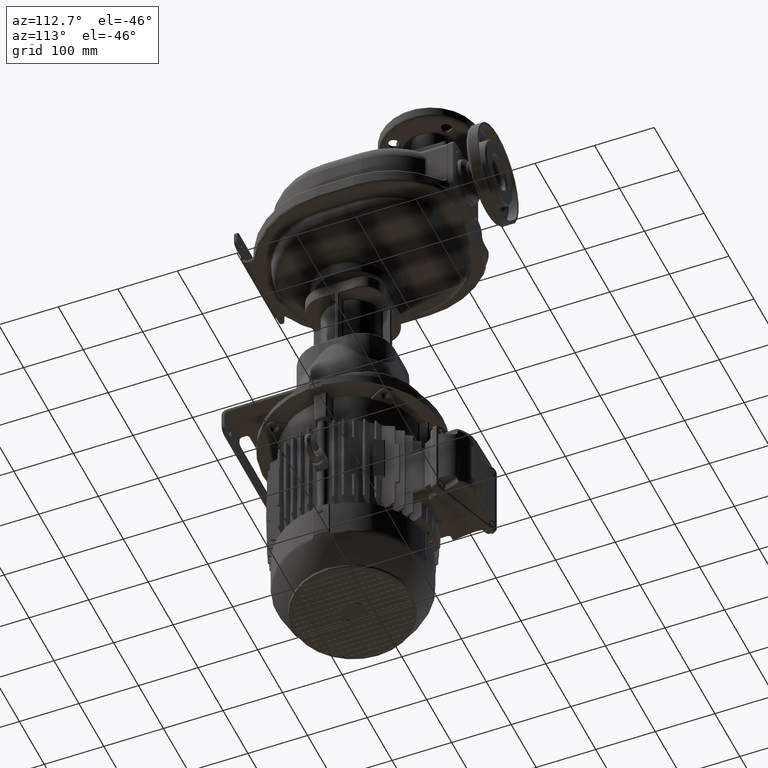
[diagram: clean part render]
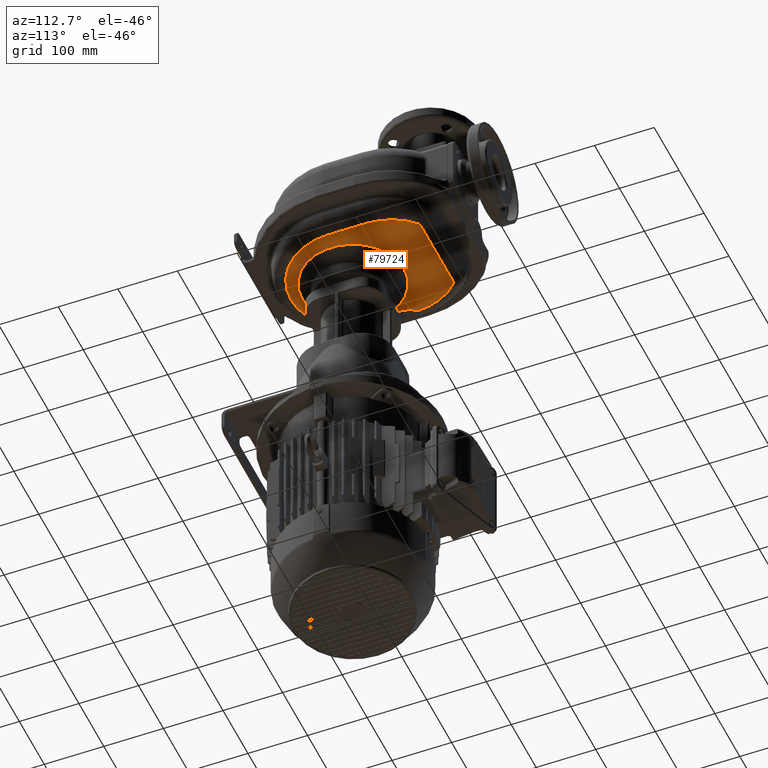
[diagram: same view with one face highlighted and labeled with its STEP entity id]
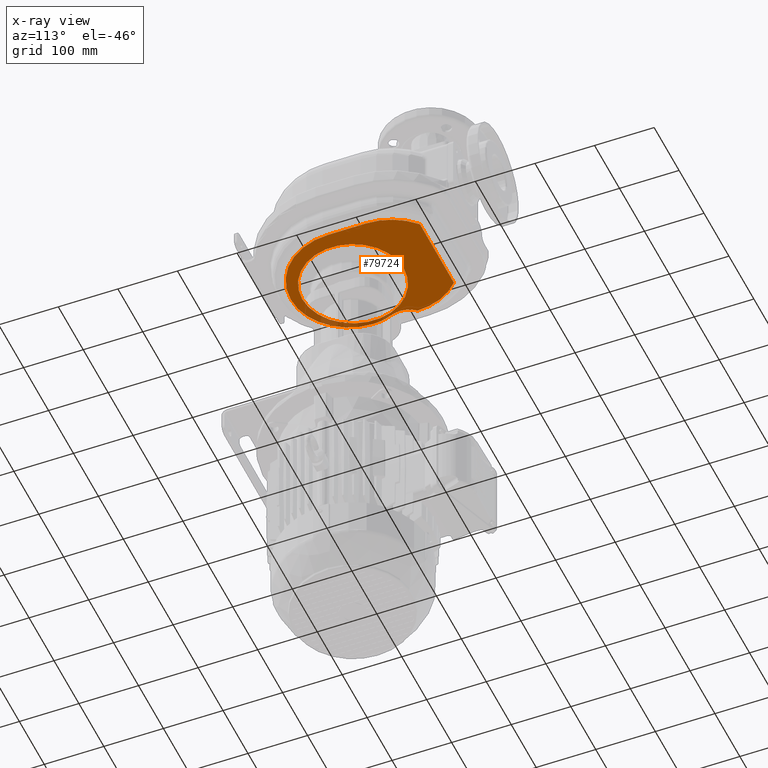
[diagram: x-ray of the same camera — body ghosted, the highlighted face saturated]
A machine part, auxiliary view. The second image highlights one B-rep face of the part: STEP entity #79724.
The next image is the same camera in x-ray: the body ghosted, the highlighted face saturated — about 7% of this face is hidden behind the body in this view.
In plain terms, the highlighted planar face has unit normal (0, 0, -1).
Its self-contained STEP definition (entity closure, byte-faithful):
#22984=CARTESIAN_POINT('',(1.E1,2.29E2,-7.45E1));
#22985=DIRECTION('',(0.E0,0.E0,-1.E0));
#22986=DIRECTION('',(-9.999446808968E-1,1.051832430719E-2,0.E0));
#22987=AXIS2_PLACEMENT_3D('',#22984,#22985,#22986);
#22989=CARTESIAN_POINT('',(-1.222196018903E2,2.038729468385E2,-7.45E1));
#22990=DIRECTION('',(0.E0,0.E0,1.E0));
#22991=DIRECTION('',(9.229889912622E-1,-3.848263530592E-1,0.E0));
#22992=AXIS2_PLACEMENT_3D('',#22989,#22990,#22991);
#22994=CARTESIAN_POINT('',(-5.E0,1.55E2,-7.45E1));
#22995=DIRECTION('',(0.E0,0.E0,-1.E0));
#22996=DIRECTION('',(-1.E0,0.E0,0.E0));
#22997=AXIS2_PLACEMENT_3D('',#22994,#22995,#22996);
#22999=CARTESIAN_POINT('',(5.E0,1.55E2,-7.45E1));
#23000=DIRECTION('',(0.E0,0.E0,-1.E0));
#23001=DIRECTION('',(0.E0,-1.E0,0.E0));
#23002=AXIS2_PLACEMENT_3D('',#22999,#23000,#23001);
#23004=CARTESIAN_POINT('',(5.E0,1.65E2,-7.45E1));
#23005=DIRECTION('',(0.E0,0.E0,-1.E0));
#23006=DIRECTION('',(1.E0,0.E0,0.E0));
#23007=AXIS2_PLACEMENT_3D('',#23004,#23005,#23006);
#23009=DIRECTION('',(0.E0,-1.E0,0.E0));
#23010=VECTOR('',#23009,6.4E1);
#23011=CARTESIAN_POINT('',(1.12E2,2.29E2,-7.45E1));
#23012=LINE('',#23011,#23010);
#23013=CARTESIAN_POINT('',(1.E1,2.29E2,-7.45E1));
#23014=DIRECTION('',(0.E0,0.E0,-1.E0));
#23015=DIRECTION('',(6.754849897899E-1,7.373737373737E-1,0.E0));
#23016=AXIS2_PLACEMENT_3D('',#23013,#23014,#23015);
#23018=CARTESIAN_POINT('',(7.687301398920E1,3.02E2,-7.45E1));
#23019=DIRECTION('',(0.E0,0.E0,-1.E0));
#23020=DIRECTION('',(0.E0,1.E0,0.E0));
#23021=AXIS2_PLACEMENT_3D('',#23018,#23019,#23020);
#23023=DIRECTION('',(1.E0,0.E0,0.E0));
#23024=VECTOR('',#23023,1.337460279784E2);
#23025=CARTESIAN_POINT('',(-5.687301398920E1,3.05E2,-7.45E1));
#23026=LINE('',#23025,#23024);
#23027=CARTESIAN_POINT('',(-5.687301398920E1,3.02E2,-7.45E1));
#23028=DIRECTION('',(0.E0,0.E0,-1.E0));
#23029=DIRECTION('',(-6.754849897900E-1,7.373737373737E-1,0.E0));
#23030=AXIS2_PLACEMENT_3D('',#23027,#23028,#23029);
#23032=CARTESIAN_POINT('',(0.E0,1.6E2,-7.45E1));
#23033=DIRECTION('',(0.E0,0.E0,-1.E0));
#23034=DIRECTION('',(0.E0,1.E0,0.E0));
#23035=AXIS2_PLACEMENT_3D('',#23032,#23033,#23034);
#23037=CARTESIAN_POINT('',(0.E0,1.6E2,-7.45E1));
#23038=DIRECTION('',(0.E0,0.E0,-1.E0));
#23039=DIRECTION('',(0.E0,-1.E0,0.E0));
#23040=AXIS2_PLACEMENT_3D('',#23037,#23038,#23039);
#23042=CARTESIAN_POINT('',(-9.199435689668E1,2.300728503084E2,-7.45E1));
#42055=VERTEX_POINT('',#23042);
#42058=CARTESIAN_POINT('',(2.743897526979E-14,2.453137084990E2,-7.45E1));
#42059=CARTESIAN_POINT('',(-1.699107151259E-14,7.468629150102E1,-7.45E1));
#42060=VERTEX_POINT('',#42058);
#42061=VERTEX_POINT('',#42059);
#42074=CARTESIAN_POINT('',(-5.889946895857E1,3.042121212121E2,-7.45E1));
#42075=VERTEX_POINT('',#42074);
#42078=CARTESIAN_POINT('',(-5.687301398920E1,3.05E2,-7.45E1));
#42079=VERTEX_POINT('',#42078);
#42082=CARTESIAN_POINT('',(7.687301398920E1,3.05E2,-7.45E1));
#42083=VERTEX_POINT('',#42082);
#42086=CARTESIAN_POINT('',(7.889946895857E1,3.042121212121E2,-7.45E1));
#42087=VERTEX_POINT('',#42086);
#42090=CARTESIAN_POINT('',(1.12E2,2.29E2,-7.45E1));
#42091=VERTEX_POINT('',#42090);
#42094=CARTESIAN_POINT('',(1.12E2,1.65E2,-7.45E1));
#42095=VERTEX_POINT('',#42094);
#42098=CARTESIAN_POINT('',(5.E0,5.8E1,-7.45E1));
#42099=VERTEX_POINT('',#42098);
#42102=CARTESIAN_POINT('',(-9.2E1,1.55E2,-7.45E1));
#42103=VERTEX_POINT('',#42102);
#42106=CARTESIAN_POINT('',(-8.530004223981E1,1.884798927162E2,-7.45E1));
#42107=VERTEX_POINT('',#42106);
#79692=CARTESIAN_POINT('',(0.E0,1.6E2,-7.45E1));
#79693=DIRECTION('',(0.E0,0.E0,-1.E0));
#79694=DIRECTION('',(-1.E0,0.E0,0.E0));
#79695=AXIS2_PLACEMENT_3D('',#79692,#79693,#79694);
#79696=PLANE('',#79695);
#79698=ORIENTED_EDGE('',*,*,#79697,.F.);
#79700=ORIENTED_EDGE('',*,*,#79699,.F.);
#79702=ORIENTED_EDGE('',*,*,#79701,.F.);
#79704=ORIENTED_EDGE('',*,*,#79703,.F.);
#79706=ORIENTED_EDGE('',*,*,#79705,.F.);
#79708=ORIENTED_EDGE('',*,*,#79707,.F.);
#79710=ORIENTED_EDGE('',*,*,#79709,.F.);
#79712=ORIENTED_EDGE('',*,*,#79711,.F.);
#79714=ORIENTED_EDGE('',*,*,#79713,.F.);
#79716=ORIENTED_EDGE('',*,*,#79715,.F.);
#79717=EDGE_LOOP('',(#79698,#79700,#79702,#79704,#79706,#79708,#79710,#79712,
#79714,#79716));
#79718=FACE_OUTER_BOUND('',#79717,.F.);
#79720=ORIENTED_EDGE('',*,*,#79719,.T.);
#79721=ORIENTED_EDGE('',*,*,#79682,.T.);
#79722=EDGE_LOOP('',(#79720,#79721));
#79723=FACE_BOUND('',#79722,.F.);
#79724=ADVANCED_FACE('',(#79718,#79723),#79696,.T.);
#22988=CIRCLE('',#22987,1.02E2);
#22993=CIRCLE('',#22992,4.E1);
#22998=CIRCLE('',#22997,8.7E1);
#23003=CIRCLE('',#23002,9.7E1);
#23008=CIRCLE('',#23007,1.07E2);
#23017=CIRCLE('',#23016,1.02E2);
#23022=CIRCLE('',#23021,3.E0);
#23031=CIRCLE('',#23030,3.E0);
#23036=CIRCLE('',#23035,8.531370849898E1);
#23041=CIRCLE('',#23040,8.531370849898E1);
#79682=EDGE_CURVE('',#42061,#42060,#23041,.T.);
#79697=EDGE_CURVE('',#42055,#42075,#22988,.T.);
#79699=EDGE_CURVE('',#42107,#42055,#22993,.T.);
#79701=EDGE_CURVE('',#42103,#42107,#22998,.T.);
#79703=EDGE_CURVE('',#42099,#42103,#23003,.T.);
#79705=EDGE_CURVE('',#42095,#42099,#23008,.T.);
#79707=EDGE_CURVE('',#42091,#42095,#23012,.T.);
#79709=EDGE_CURVE('',#42087,#42091,#23017,.T.);
#79711=EDGE_CURVE('',#42083,#42087,#23022,.T.);
#79713=EDGE_CURVE('',#42079,#42083,#23026,.T.);
#79715=EDGE_CURVE('',#42075,#42079,#23031,.T.);
#79719=EDGE_CURVE('',#42060,#42061,#23036,.T.);